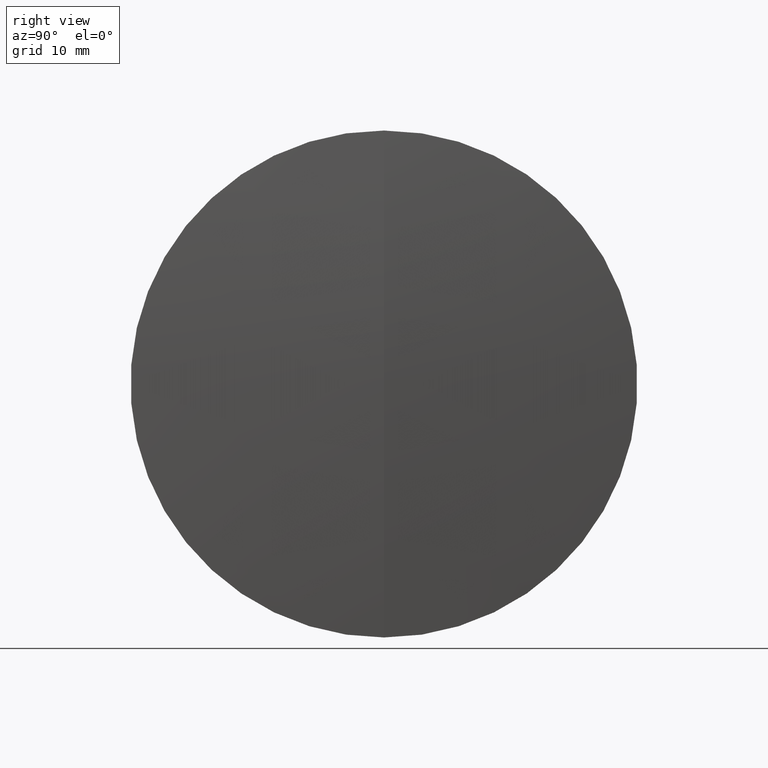
[diagram: clean part render]
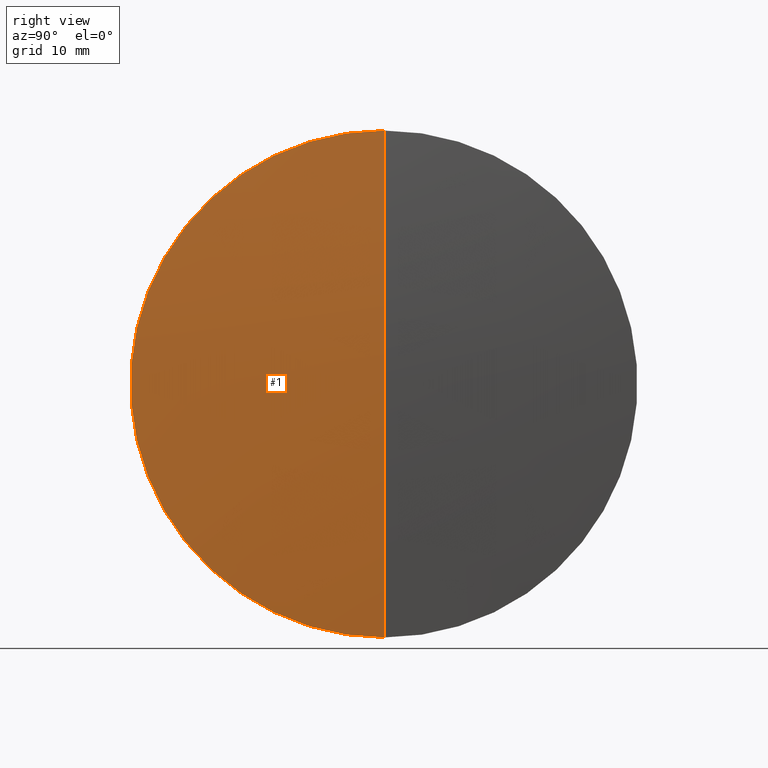
[diagram: same view with one face highlighted and labeled with its STEP entity id]
A machine part, right view. The second image highlights one B-rep face of the part: STEP entity #1.
In plain terms, the highlighted spherical surface has radius 280.6 mm.
Its self-contained STEP definition (entity closure, byte-faithful):
#1 = ADVANCED_FACE ( 'NONE', ( #89 ), #25, .T. ) ;
#7 = VERTEX_POINT ( 'NONE', #103 ) ;
#25 = SPHERICAL_SURFACE ( 'NONE', #83, 280.5999999999999700 ) ;
#36 = AXIS2_PLACEMENT_3D ( 'NONE', #118, #288, #265 ) ;
#37 = DIRECTION ( 'NONE',  ( 0.0000000000000000000, -1.224646799147353200E-016, 1.000000000000000000 ) ) ;
#57 = AXIS2_PLACEMENT_3D ( 'NONE', #334, #168, #37 ) ;
#75 = DIRECTION ( 'NONE',  ( 0.0000000000000000000, 0.0000000000000000000, 1.000000000000000000 ) ) ;
#83 = AXIS2_PLACEMENT_3D ( 'NONE', #191, #301, #75 ) ;
#89 = FACE_OUTER_BOUND ( 'NONE', #203, .T. ) ;
#97 = CIRCLE ( 'NONE', #253, 280.5999999999999700 ) ;
#99 = EDGE_CURVE ( 'NONE', #233, #105, #97, .T. ) ;
#103 = CARTESIAN_POINT ( 'NONE',  ( 543.0064638771954200, 3.110602869834284000E-015, -25.40000000000005500 ) ) ;
#105 = VERTEX_POINT ( 'NONE', #199 ) ;
#110 = DIRECTION ( 'NONE',  ( 0.0000000000000000000, -1.000000000000000000, 0.0000000000000000000 ) ) ;
#118 = CARTESIAN_POINT ( 'NONE',  ( 543.0064638771954200, 0.0000000000000000000, 0.0000000000000000000 ) ) ;
#136 = ORIENTED_EDGE ( 'NONE', *, *, #145, .F. ) ;
#145 = EDGE_CURVE ( 'NONE', #233, #7, #250, .T. ) ;
#168 = DIRECTION ( 'NONE',  ( -0.0000000000000000000, 1.000000000000000000, 1.224646799147353200E-016 ) ) ;
#191 = CARTESIAN_POINT ( 'NONE',  ( 263.5584365089565600, 0.0000000000000000000, 0.0000000000000000000 ) ) ;
#199 = CARTESIAN_POINT ( 'NONE',  ( 543.0064638771954200, 0.0000000000000000000, 25.40000000000005500 ) ) ;
#203 = EDGE_LOOP ( 'NONE', ( #136, #228, #256 ) ) ;
#228 = ORIENTED_EDGE ( 'NONE', *, *, #99, .T. ) ;
#233 = VERTEX_POINT ( 'NONE', #258 ) ;
#245 = CIRCLE ( 'NONE', #36, 25.40000000000005500 ) ;
#250 = CIRCLE ( 'NONE', #57, 280.5999999999999700 ) ;
#253 = AXIS2_PLACEMENT_3D ( 'NONE', #338, #110, #307 ) ;
#256 = ORIENTED_EDGE ( 'NONE', *, *, #261, .F. ) ;
#258 = CARTESIAN_POINT ( 'NONE',  ( 544.1584365089564700, 0.0000000000000000000, 1.718179459203736200E-014 ) ) ;
#261 = EDGE_CURVE ( 'NONE', #7, #105, #245, .T. ) ;
#265 = DIRECTION ( 'NONE',  ( 0.0000000000000000000, 0.0000000000000000000, 1.000000000000000000 ) ) ;
#288 = DIRECTION ( 'NONE',  ( -1.000000000000000000, -0.0000000000000000000, -0.0000000000000000000 ) ) ;
#301 = DIRECTION ( 'NONE',  ( 0.0000000000000000000, 1.000000000000000000, 0.0000000000000000000 ) ) ;
#307 = DIRECTION ( 'NONE',  ( 0.0000000000000000000, 0.0000000000000000000, -1.000000000000000000 ) ) ;
#334 = CARTESIAN_POINT ( 'NONE',  ( 263.5584365089565600, 0.0000000000000000000, 0.0000000000000000000 ) ) ;
#338 = CARTESIAN_POINT ( 'NONE',  ( 263.5584365089565600, 0.0000000000000000000, 0.0000000000000000000 ) ) ;